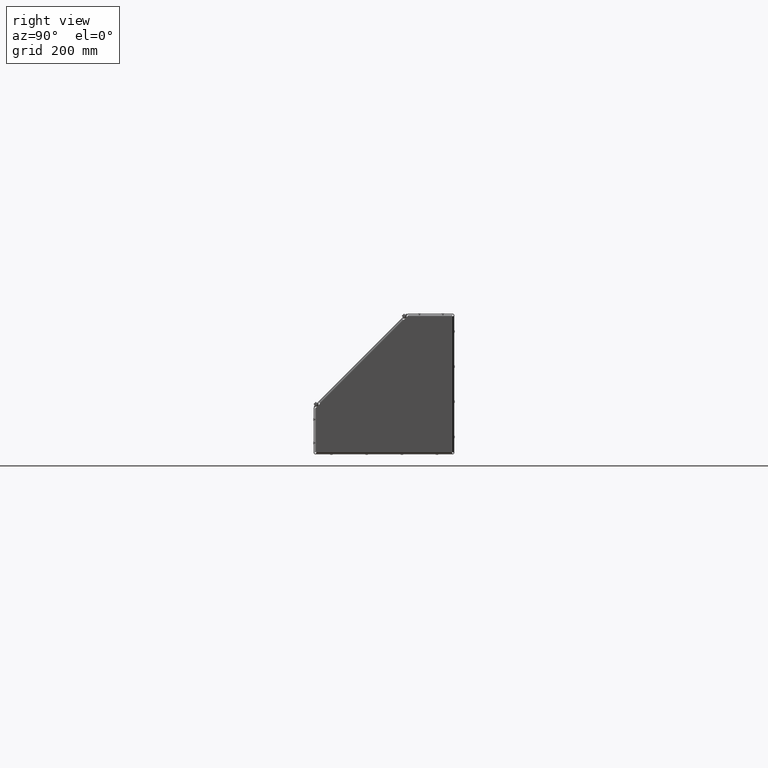
[diagram: clean part render]
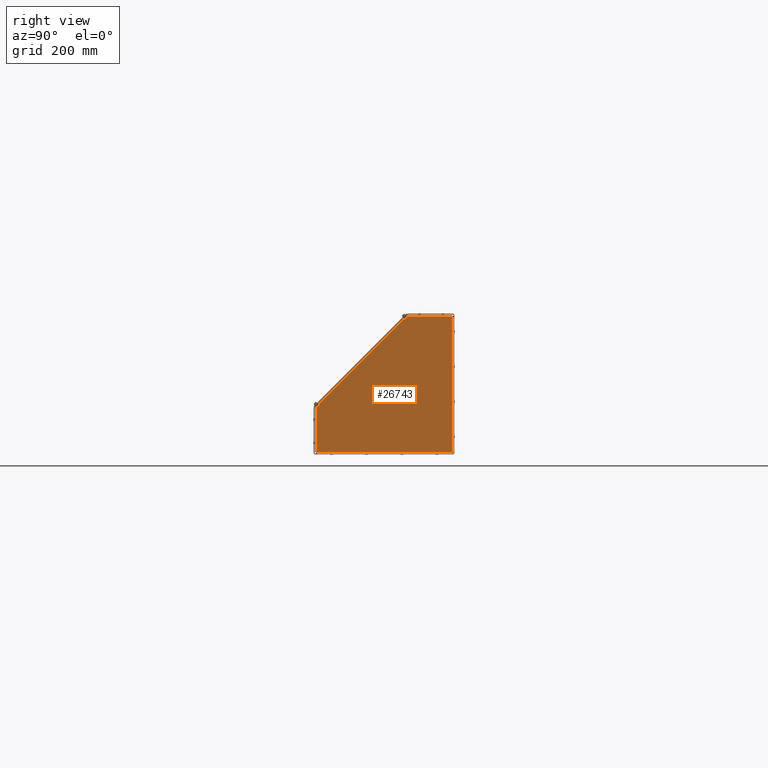
[diagram: same view with one face highlighted and labeled with its STEP entity id]
A machine part, right view. The second image highlights one B-rep face of the part: STEP entity #26743.
In plain terms, the highlighted planar face has unit normal (1, 0, -0).
Its self-contained STEP definition (entity closure, byte-faithful):
#81 = LINE ( 'NONE', #110278, #93238 ) ;
#482 = DIRECTION ( 'NONE',  ( 3.736032497143004973E-15, 0.7071067811865516806, 0.7071067811865431318 ) ) ;
#736 = ORIENTED_EDGE ( 'NONE', *, *, #76906, .F. ) ;
#2380 = EDGE_LOOP ( 'NONE', ( #736, #53273, #73217, #74091, #87642, #75445, #23633, #60742, #17376 ) ) ;
#6129 = EDGE_CURVE ( 'NONE', #9833, #101247, #43050, .T. ) ;
#6753 = VECTOR ( 'NONE', #482, 39.37007874015748854 ) ;
#9833 = VERTEX_POINT ( 'NONE', #53284 ) ;
#10874 = EDGE_CURVE ( 'NONE', #99362, #74282, #90921, .T. ) ;
#13067 = DIRECTION ( 'NONE',  ( 1.547094269739246446E-15, -1.000000000000000000, 5.332810148151489797E-15 ) ) ;
#13573 = LINE ( 'NONE', #64550, #19623 ) ;
#16845 = LINE ( 'NONE', #103027, #80007 ) ;
#17376 = ORIENTED_EDGE ( 'NONE', *, *, #10874, .T. ) ;
#19623 = VECTOR ( 'NONE', #99182, 39.37007874015748854 ) ;
#22365 = AXIS2_PLACEMENT_3D ( 'NONE', #61356, #27146, #70364 ) ;
#23360 = EDGE_CURVE ( 'NONE', #76068, #62651, #99229, .T. ) ;
#23633 = ORIENTED_EDGE ( 'NONE', *, *, #30995, .F. ) ;
#26743 = ADVANCED_FACE ( 'NONE', ( #104934 ), #29381, .T. ) ;
#27146 = DIRECTION ( 'NONE',  ( 1.000000000000000000, 1.547094269739209961E-15, -6.830642096665520959E-15 ) ) ;
#27253 = VECTOR ( 'NONE', #67603, 39.37007874015748143 ) ;
#27427 = VECTOR ( 'NONE', #49153, 39.37007874015748143 ) ;
#27600 = CARTESIAN_POINT ( 'NONE',  ( 29.61664738715529666, -5.204450069631460174, 1.332300788683254966 ) ) ;
#29381 = PLANE ( 'NONE',  #22365 ) ;
#30995 = EDGE_CURVE ( 'NONE', #40942, #62651, #16845, .T. ) ;
#31207 = VERTEX_POINT ( 'NONE', #32363 ) ;
#32363 = CARTESIAN_POINT ( 'NONE',  ( 29.61664738715526468, -5.497193922666590460, -2.789499999999988766 ) ) ;
#32816 = LINE ( 'NONE', #33389, #27253 ) ;
#33389 = CARTESIAN_POINT ( 'NONE',  ( 29.61664738715530021, -5.497193922666565591, 2.066392000913492843 ) ) ;
#34044 = CARTESIAN_POINT ( 'NONE',  ( 29.61664738715524692, 6.050556077333409277, -2.789500000000051383 ) ) ;
#34477 = EDGE_CURVE ( 'NONE', #9833, #31207, #32816, .T. ) ;
#38839 = CARTESIAN_POINT ( 'NONE',  ( 29.61664738715528244, 6.050556077333435923, 2.066392000913431559 ) ) ;
#39376 = VECTOR ( 'NONE', #65099, 39.37007874015748143 ) ;
#40942 = VERTEX_POINT ( 'NONE', #48161 ) ;
#41320 = CARTESIAN_POINT ( 'NONE',  ( 29.61664738715533218, 1.937033756474288326, 8.457227679140789434 ) ) ;
#41752 = CARTESIAN_POINT ( 'NONE',  ( 29.61664738715533218, 1.928755288650217947, 8.465506146964870027 ) ) ;
#43050 = LINE ( 'NONE', #77156, #6753 ) ;
#43560 = EDGE_CURVE ( 'NONE', #31207, #101181, #81, .T. ) ;
#48161 = CARTESIAN_POINT ( 'NONE',  ( 29.61664738715533218, 1.937033756474288548, 8.457227679140789434 ) ) ;
#49153 = DIRECTION ( 'NONE',  ( 5.923954195680169661E-15, -0.7071067811861236896, 0.7071067811869713449 ) ) ;
#50467 = DIRECTION ( 'NONE',  ( 3.736032497143013650E-15, 0.7071067811865507924, 0.7071067811865442421 ) ) ;
#53273 = ORIENTED_EDGE ( 'NONE', *, *, #6129, .F. ) ;
#53284 = CARTESIAN_POINT ( 'NONE',  ( 29.61664738715529310, -5.497193922666571808, 1.023000000000009901 ) ) ;
#60742 = ORIENTED_EDGE ( 'NONE', *, *, #98505, .T. ) ;
#61356 = CARTESIAN_POINT ( 'NONE',  ( 29.61664738715528955, 1.194664076419954313, 2.066392000913457316 ) ) ;
#61455 = CARTESIAN_POINT ( 'NONE',  ( 29.61664738715529666, -5.196171601807388463, 1.324022320859188362 ) ) ;
#62651 = VERTEX_POINT ( 'NONE', #100677 ) ;
#64550 = CARTESIAN_POINT ( 'NONE',  ( 29.61664738715529666, -5.196171601807388463, 1.324022320859188362 ) ) ;
#65099 = DIRECTION ( 'NONE',  ( 6.830642096665513070E-15, 5.332810148151500052E-15, 1.000000000000000000 ) ) ;
#67060 = VECTOR ( 'NONE', #101556, 39.37007874015748854 ) ;
#67603 = DIRECTION ( 'NONE',  ( -6.830642096665513070E-15, -5.332810148151500052E-15, -1.000000000000000000 ) ) ;
#70364 = DIRECTION ( 'NONE',  ( -6.830642096665513070E-15, -5.332810148151500052E-15, -1.000000000000000000 ) ) ;
#73217 = ORIENTED_EDGE ( 'NONE', *, *, #34477, .T. ) ;
#74091 = ORIENTED_EDGE ( 'NONE', *, *, #43560, .T. ) ;
#74282 = VERTEX_POINT ( 'NONE', #27600 ) ;
#75445 = ORIENTED_EDGE ( 'NONE', *, *, #23360, .T. ) ;
#76068 = VERTEX_POINT ( 'NONE', #93468 ) ;
#76885 = EDGE_CURVE ( 'NONE', #101181, #76068, #90230, .T. ) ;
#76906 = EDGE_CURVE ( 'NONE', #101247, #74282, #13573, .T. ) ;
#77156 = CARTESIAN_POINT ( 'NONE',  ( 29.61664738715529310, -5.633693922666571652, 0.8865000000000106128 ) ) ;
#80007 = VECTOR ( 'NONE', #50467, 39.37007874015748143 ) ;
#81494 = CARTESIAN_POINT ( 'NONE',  ( 29.61664738715533218, 1.928755288650219057, 8.465506146964862921 ) ) ;
#87642 = ORIENTED_EDGE ( 'NONE', *, *, #76885, .T. ) ;
#90230 = LINE ( 'NONE', #38839, #39376 ) ;
#90921 = LINE ( 'NONE', #41752, #67060 ) ;
#91346 = CARTESIAN_POINT ( 'NONE',  ( 29.61664738715533574, 1.194664076419989840, 8.758249999999977220 ) ) ;
#93238 = VECTOR ( 'NONE', #102459, 39.37007874015748143 ) ;
#93468 = CARTESIAN_POINT ( 'NONE',  ( 29.61664738715532863, 6.050556077333470562, 8.758249999999950575 ) ) ;
#94071 = VECTOR ( 'NONE', #13067, 39.37007874015748143 ) ;
#98505 = EDGE_CURVE ( 'NONE', #40942, #99362, #101677, .T. ) ;
#99182 = DIRECTION ( 'NONE',  ( 5.923954195677889853E-15, -0.7071067811865551223, 0.7071067811865398012 ) ) ;
#99229 = LINE ( 'NONE', #91346, #94071 ) ;
#99362 = VERTEX_POINT ( 'NONE', #81494 ) ;
#100677 = CARTESIAN_POINT ( 'NONE',  ( 29.61664738715533218, 2.238056077333470562, 8.758249999999970115 ) ) ;
#101181 = VERTEX_POINT ( 'NONE', #34044 ) ;
#101247 = VERTEX_POINT ( 'NONE', #61455 ) ;
#101556 = DIRECTION ( 'NONE',  ( -3.736032497143008917E-15, -0.7071067811865512365, -0.7071067811865436870 ) ) ;
#101677 = LINE ( 'NONE', #41320, #27427 ) ;
#102459 = DIRECTION ( 'NONE',  ( -1.547094269739246446E-15, 1.000000000000000000, -5.332810148151489797E-15 ) ) ;
#103027 = CARTESIAN_POINT ( 'NONE',  ( 29.61664738715533218, 1.937033756474288326, 8.457227679140789434 ) ) ;
#104934 = FACE_OUTER_BOUND ( 'NONE', #2380, .T. ) ;
#110278 = CARTESIAN_POINT ( 'NONE',  ( 29.61664738715525758, 1.194664076419928334, -2.789500000000025182 ) ) ;